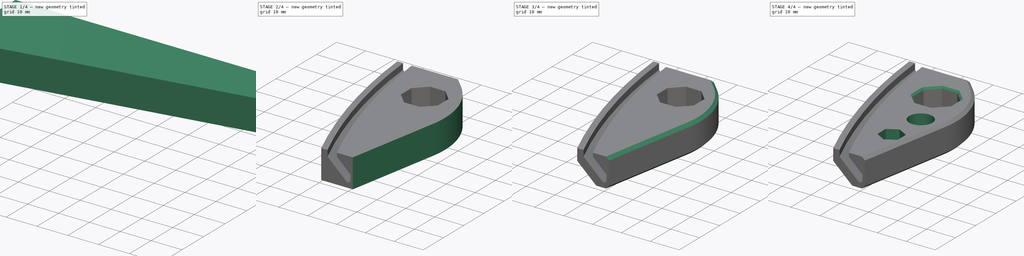
[diagram: build sequence overview — one tinted view per stage of 4, left to right]
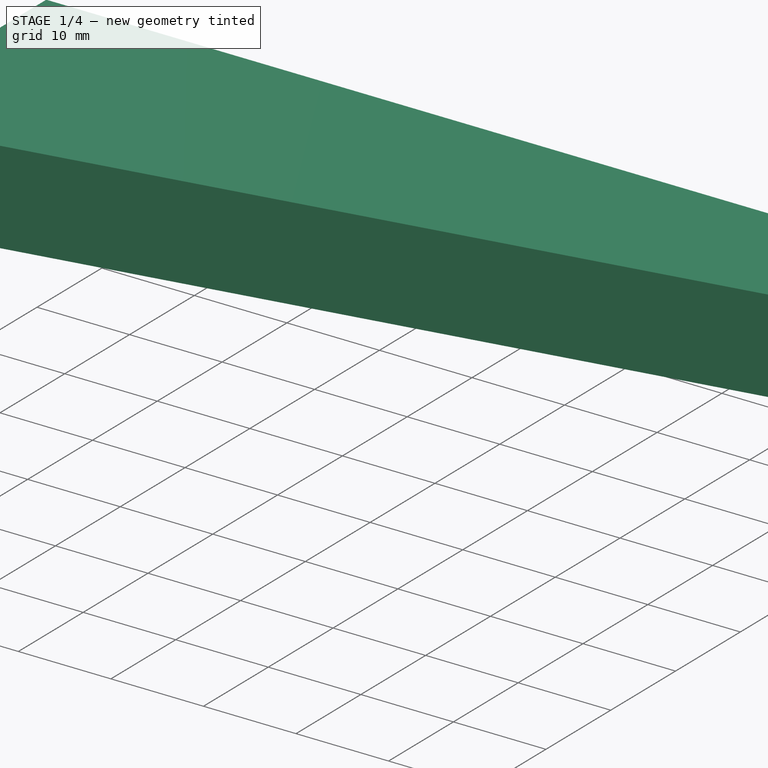
[diagram: stage 1 of 4 — iso view after this stage's code; geometry added in this stage tinted green]
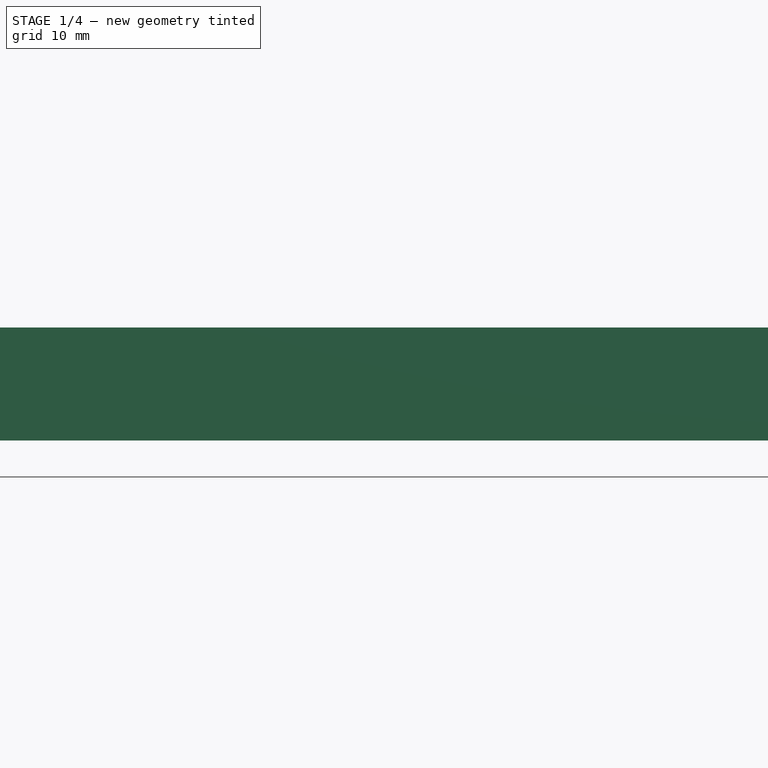
[diagram: stage 1 of 4 — front view after this stage's code; geometry added in this stage tinted green]
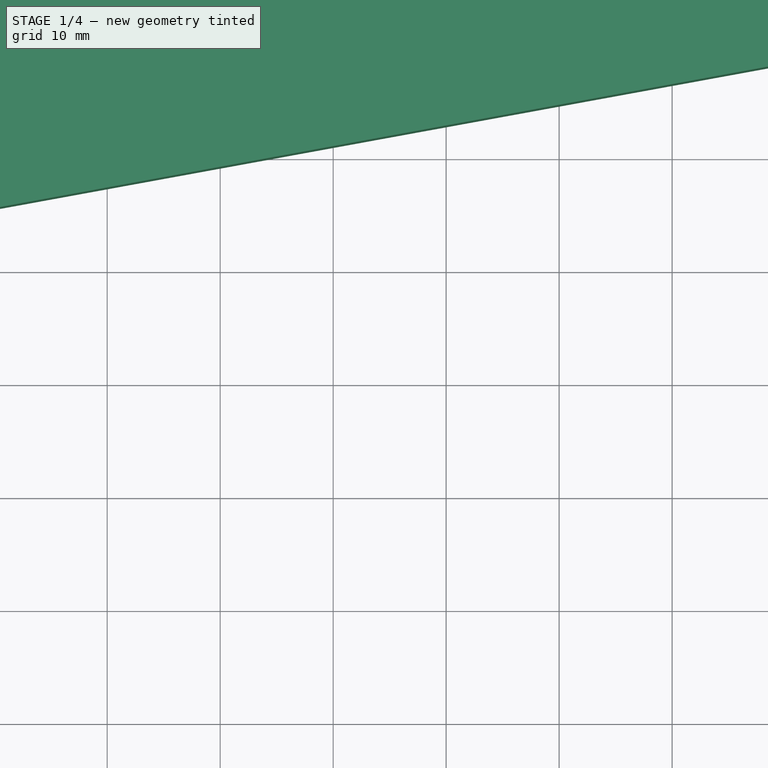
[diagram: stage 1 of 4 — top view after this stage's code; geometry added in this stage tinted green]
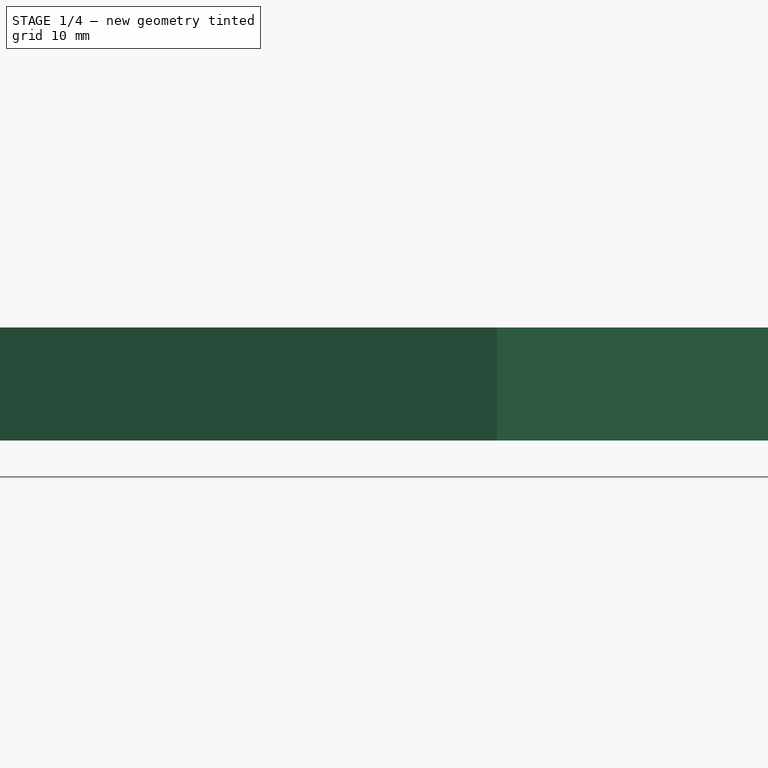
[diagram: stage 1 of 4 — right view after this stage's code; geometry added in this stage tinted green]
FCSTD DOCUMENT  (FreeCAD 0.17R12960 (Git))
Label: ma_Case1
License: All rights reserved
LicenseURL: http://en.wikipedia.org/wiki/All_rights_reserved
objects: Sketcher::SketchObject×4, PartDesign::Chamfer×4, PartDesign::Pocket×2, PartDesign::Pad×1, PartDesign::Groove×1, PartDesign::Fillet×1, PartDesign::Body×1
note: 18 computed .brp shape members not serialized (recipe doc carries the construction recipe); baked Part::Feature solids carry a one-line shape summary decoded from their .brp

FEATURE [Sketcher::SketchObject] Sketch
  MapMode = 5
  Support = -> [XY_Plane]
  sketch-geometry (16):
    g0: LineSegment StartX=-35 StartY=30 StartZ=0 EndX=0 EndY=30 EndZ=0
    g1: LineSegment StartX=0 StartY=20 StartZ=0 EndX=0 EndY=-30 EndZ=0
    g2: LineSegment StartX=0 StartY=-30 StartZ=0 EndX=-19.3055 EndY=-30 EndZ=0
    g3: ArcOfCircle CenterX=163.997 CenterY=50 CenterZ=0 NormalX=0 NormalY=0 NormalZ=1 AngleXU=0 Radius=200 StartAngle=3.24176 EndAngle=3.55311
    g4: LineSegment StartX=-8.6 StartY=12.349 StartZ=0 EndX=-8.6 EndY=17.651 EndZ=0
    g5: LineSegment StartX=-8.6 StartY=17.651 StartZ=0 EndX=-12.349 EndY=21.4 EndZ=0
    g6: LineSegment StartX=-12.349 StartY=21.4 StartZ=0 EndX=-17.651 EndY=21.4 EndZ=0
    g7: LineSegment StartX=-17.651 StartY=21.4 StartZ=0 EndX=-21.4 EndY=17.651 EndZ=0
    g8: LineSegment StartX=-21.4 StartY=17.651 StartZ=0 EndX=-21.4 EndY=12.349 EndZ=0
    g9: LineSegment StartX=-21.4 StartY=12.349 StartZ=0 EndX=-17.651 EndY=8.6 EndZ=0
    g10: LineSegment StartX=-17.651 StartY=8.6 StartZ=0 EndX=-12.349 EndY=8.6 EndZ=0
    g11: LineSegment StartX=-12.349 StartY=8.6 StartZ=0 EndX=-8.6 EndY=12.349 EndZ=0
    g12: Circle [constr] CenterX=-15 CenterY=15 CenterZ=0 NormalX=0 NormalY=0 NormalZ=1 AngleXU=0 Radius=6.92731
    g13: LineSegment StartX=0 StartY=50 StartZ=0 EndX=0 EndY=30 EndZ=0
    g14: LineSegment StartX=0 StartY=20 StartZ=0 EndX=163.997 EndY=50 EndZ=0
    g15: LineSegment StartX=163.997 StartY=50 StartZ=0 EndX=0 EndY=50 EndZ=0
  constraints (41):
    c: Coincident(g1,g2)
    c: Horizontal(g0)
    c: Horizontal(g2)
    c: PointOnObject(g1,g-2)
    c: Symmetric(g1,g0,g-1)
    c: DistanceY(g1,g0) = 60
    c: Coincident(g3,g0)
    c: DistanceY(g-1,g3) = 50
    c: DistanceX(g0,g0) = 35
    c: Radius(g3) = 200
    c: Coincident(g2,g3)
    c: Coincident(g4,g5)
    c: Coincident(g5,g6)
    c: Coincident(g6,g7)
    c: Coincident(g7,g8)
    c: Coincident(g8,g9)
    c: Coincident(g9,g10)
    c: Coincident(g10,g11)
    c: Coincident(g11,g4)
    c: Equal(g4, g5-g11) x7
    c: PointOnObject(g4,g12)
    c: PointOnObject(g5,g12)
    c: PointOnObject(g6,g12)
    c: PointOnObject(g7,g12)
    c: PointOnObject(g8,g12)
    c: PointOnObject(g9,g12)
    c: PointOnObject(g10,g12)
    c: PointOnObject(g11,g12)
    c: Horizontal(g10)
    c: DistanceY(g-1,g12) = 15
    c: DistanceX(g12,g-1) = 15
    c: DistanceX(g8,g4) = 12.8
    c: Coincident(g13,g0)
    c: Vertical(g13)
    c: DistanceY(g1,g0) = 10
    c: Vertical(g1)
    c: Coincident(g1,g14)
    c: Coincident(g14,g3)
    c: Coincident(g14,g15)
    c: Coincident(g15,g13)
    c: Horizontal(g15)
FEATURE [PartDesign::Pad] Pad
  Length = 10
  Length2 = 100
  Profile = -> Sketch
  Type = 0
FEATURE [Sketcher::SketchObject] Sketch001
  ExternalGeometry = -> [Pad]
  MapMode = 5
  Placement = pos=(0,30,0) rot=(0,0.707107,0.707107;3.14159rad)
  Support = -> [Pad]
  sketch-geometry (7):
    g0: LineSegment StartX=33 StartY=10 StartZ=0 EndX=33 EndY=7.9 EndZ=0
    g1: LineSegment StartX=33 StartY=7.9 StartZ=0 EndX=26.6 EndY=1.5 EndZ=0
    g2: LineSegment StartX=26.6 StartY=1.5 StartZ=0 EndX=25.7 EndY=2.4 EndZ=0
    g3: LineSegment StartX=25.7 StartY=2.4 StartZ=0 EndX=25.7 EndY=4.4 EndZ=0
    g4: LineSegment StartX=25.7 StartY=4.4 StartZ=0 EndX=30 EndY=8.7 EndZ=0
    g5: LineSegment StartX=30 StartY=8.7 StartZ=0 EndX=30 EndY=10 EndZ=0
    g6: LineSegment StartX=30 StartY=10 StartZ=0 EndX=33 EndY=10 EndZ=0
  constraints (21):
    c: PointOnObject(g0,g-3)
    c: Vertical(g0)
    c: Coincident(g0,g1)
    c: Coincident(g1,g2)
    c: Coincident(g2,g3)
    c: Vertical(g3)
    c: Coincident(g3,g4)
    c: Coincident(g4,g5)
    c: PointOnObject(g5,g-3)
    c: Vertical(g5)
    c: Coincident(g5,g6)
    c: Coincident(g6,g0)
    c: Parallel(g1,g4)
    c: Angle(g1) = -2.35619
    c: Angle(g2) = 2.35619
    c: DistanceY(g3,g3) = 2
    c: DistanceX(g0,g-3) = 2
    c: DistanceX(g6,g6) = 3
    c: DistanceY(g5,g5) = 1.3
    c: DistanceY(g1,g-3) = 8.5
    c: DistanceY(g0,g0) = 2.1
FEATURE [PartDesign::Groove] Groove
  Angle = 360
  Axis = (0,0,1)
  Base = (163.997,50,0)
  BaseFeature = -> Pad
  Profile = -> Sketch001
  ReferenceAxis = -> Pad [Edge17]
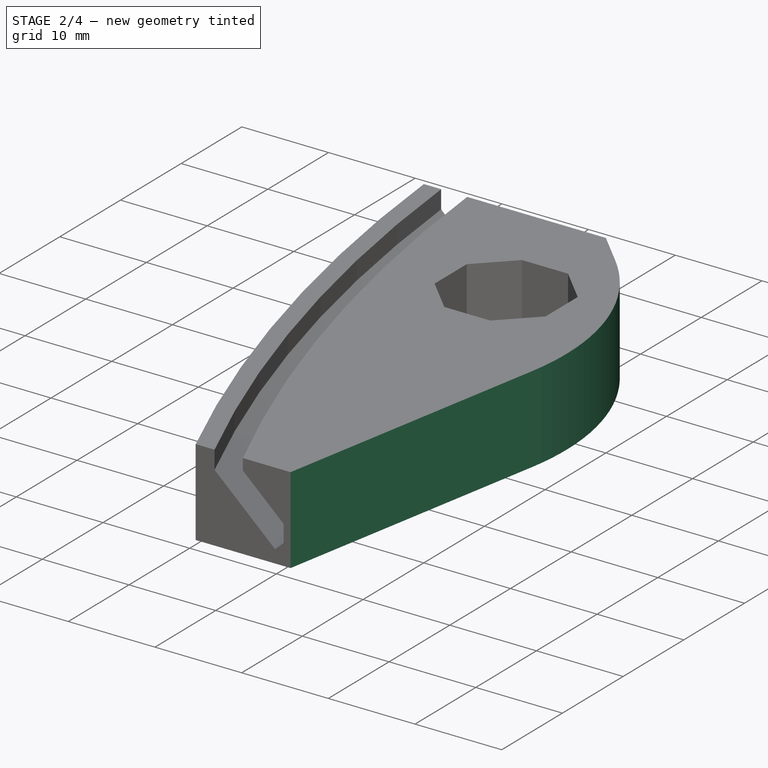
[diagram: stage 2 of 4 — iso view after this stage's code; geometry added in this stage tinted green]
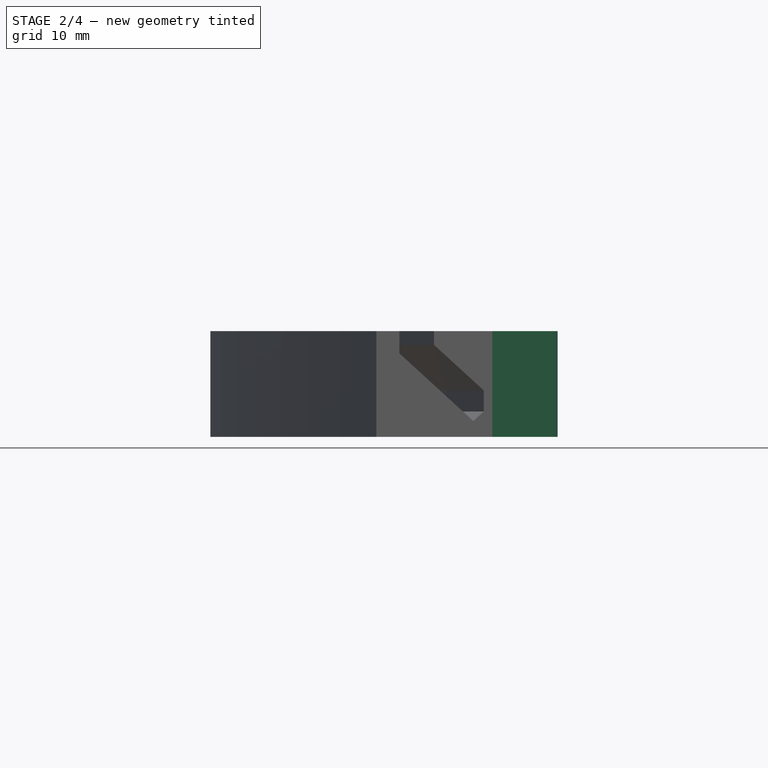
[diagram: stage 2 of 4 — front view after this stage's code; geometry added in this stage tinted green]
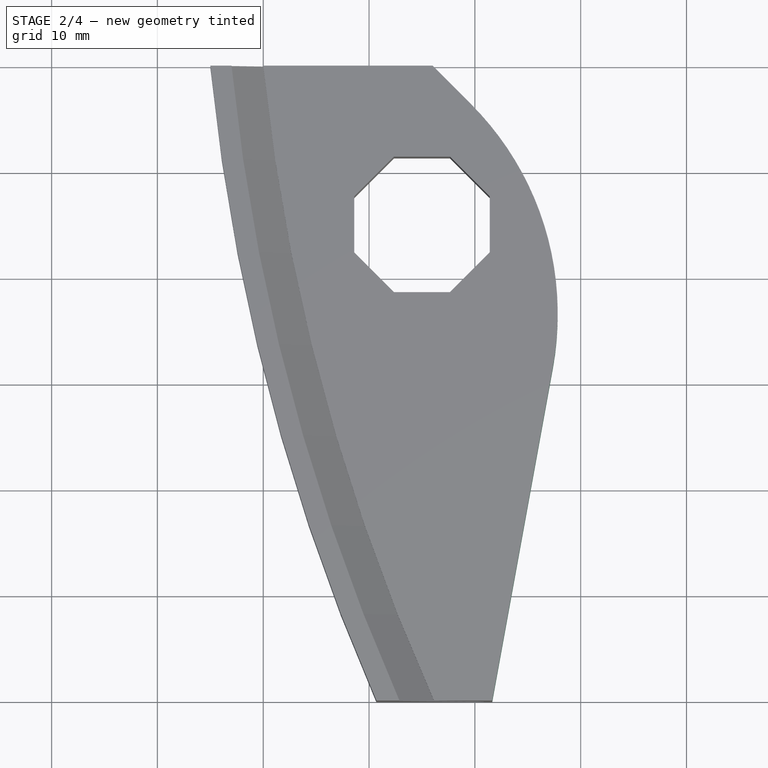
[diagram: stage 2 of 4 — top view after this stage's code; geometry added in this stage tinted green]
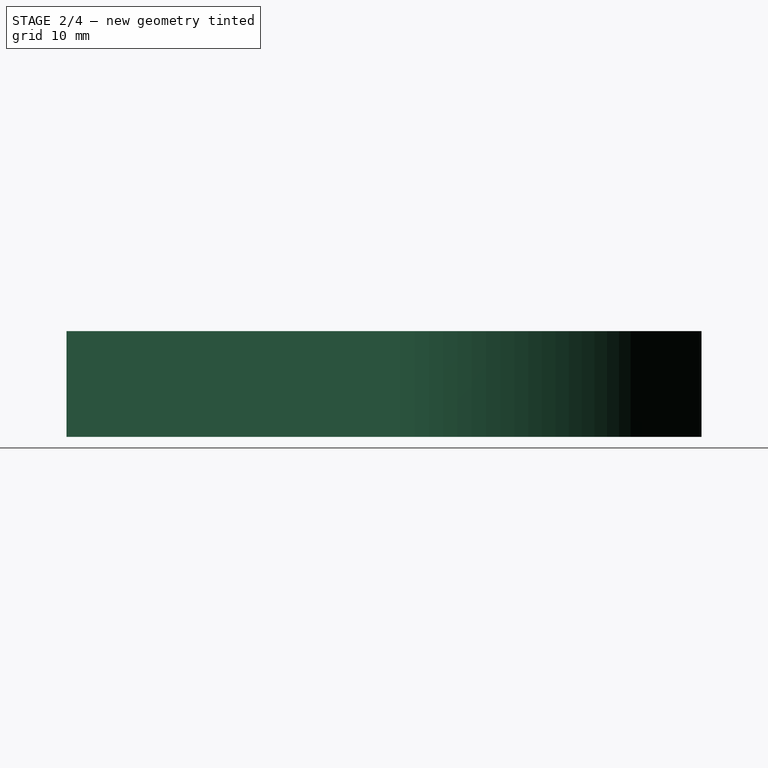
[diagram: stage 2 of 4 — right view after this stage's code; geometry added in this stage tinted green]
FEATURE [Sketcher::SketchObject] Sketch002
  MapMode = 5
  Placement = pos=(0,0,10) rot=(0,0,1;0rad)
  Support = -> [Groove]
  sketch-geometry (6):
    g0: LineSegment StartX=0 StartY=16 StartZ=0 EndX=-15 EndY=31 EndZ=0
    g1: LineSegment StartX=-15 StartY=31 StartZ=0 EndX=-15 EndY=51 EndZ=0
    g2: LineSegment StartX=-15 StartY=51 StartZ=0 EndX=170 EndY=51 EndZ=0
    g3: LineSegment StartX=170 StartY=51 StartZ=0 EndX=170 EndY=-39 EndZ=0
    g4: LineSegment StartX=170 StartY=-39 StartZ=0 EndX=-10 EndY=-39 EndZ=0
    g5: LineSegment StartX=-10 StartY=-39 StartZ=0 EndX=0 EndY=16 EndZ=0
  constraints (18):
    c: PointOnObject(g0,g-2)
    c: Coincident(g0,g1)
    c: Vertical(g1)
    c: Coincident(g1,g2)
    c: Horizontal(g2)
    c: Coincident(g2,g3)
    c: Vertical(g3)
    c: Coincident(g3,g4)
    c: Horizontal(g4)
    c: Coincident(g4,g5)
    c: Coincident(g5,g0)
    c: Angle(g0) = 2.35619
    c: DistanceY(g-1,g0) = 16
    c: DistanceX(g0,g-1) = 15
    c: DistanceY(g-1,g2) = 51
    c: DistanceY(g3,g3) = 90
    c: DistanceX(g4,g4) = 180
    c: DistanceX(g4,g-1) = 10
FEATURE [PartDesign::Pocket] Pocket
  BaseFeature = -> Groove
  Length = 5
  Profile = -> Sketch002
  Type = 1
FEATURE [PartDesign::Fillet] Fillet
  Base = -> Pocket [Edge4]
  BaseFeature = -> Pocket
  Radius = 28
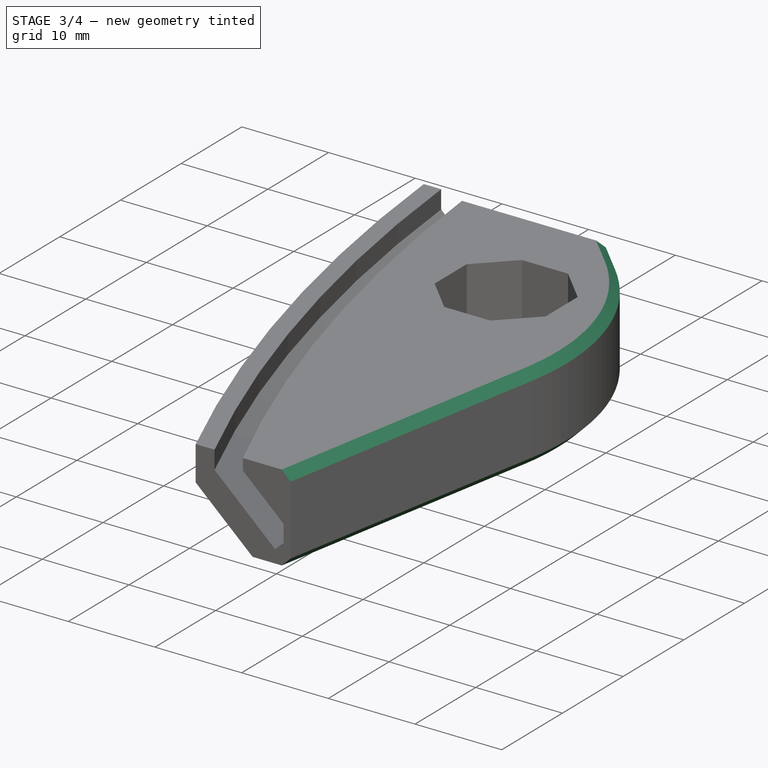
[diagram: stage 3 of 4 — iso view after this stage's code; geometry added in this stage tinted green]
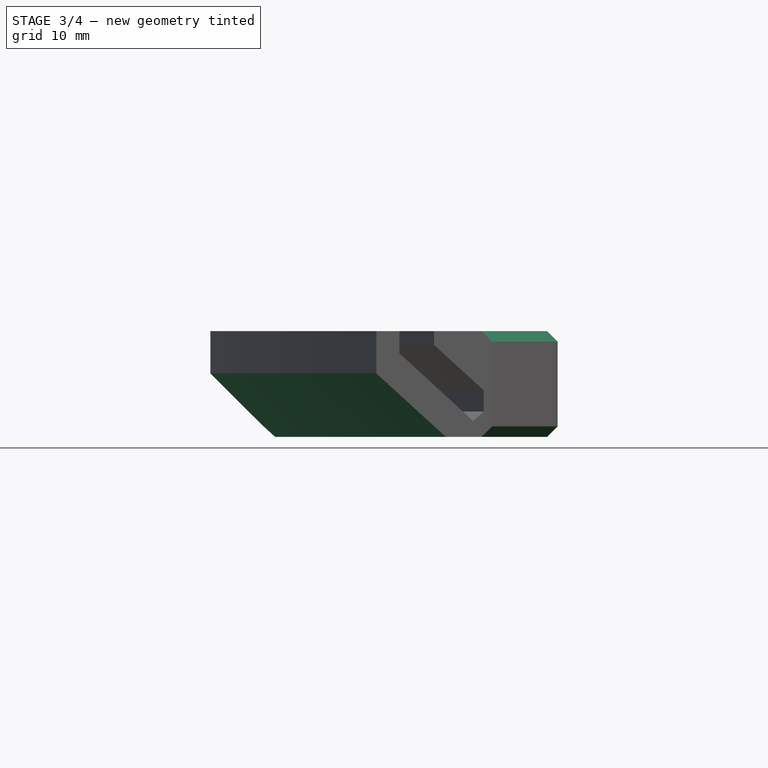
[diagram: stage 3 of 4 — front view after this stage's code; geometry added in this stage tinted green]
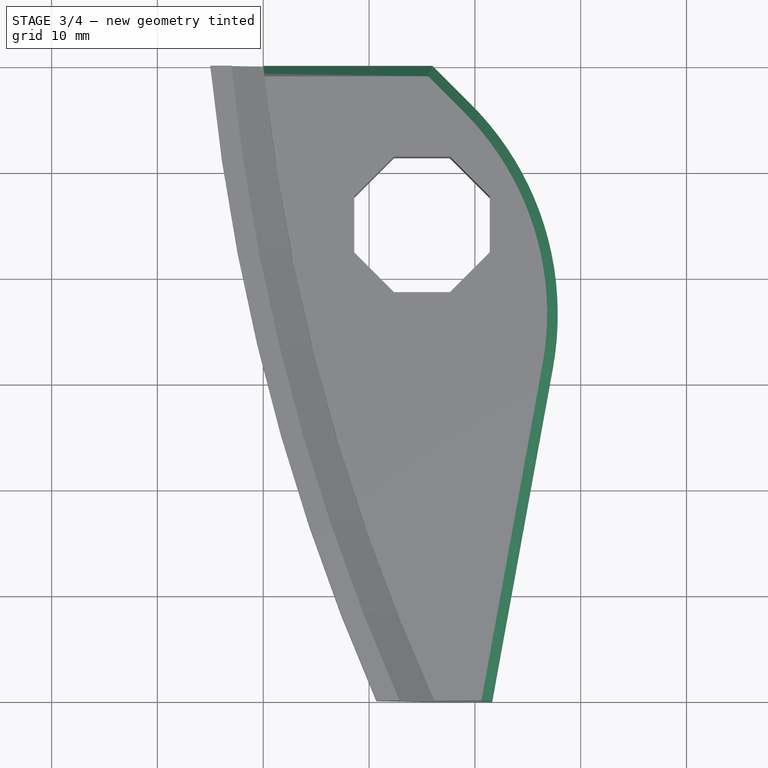
[diagram: stage 3 of 4 — top view after this stage's code; geometry added in this stage tinted green]
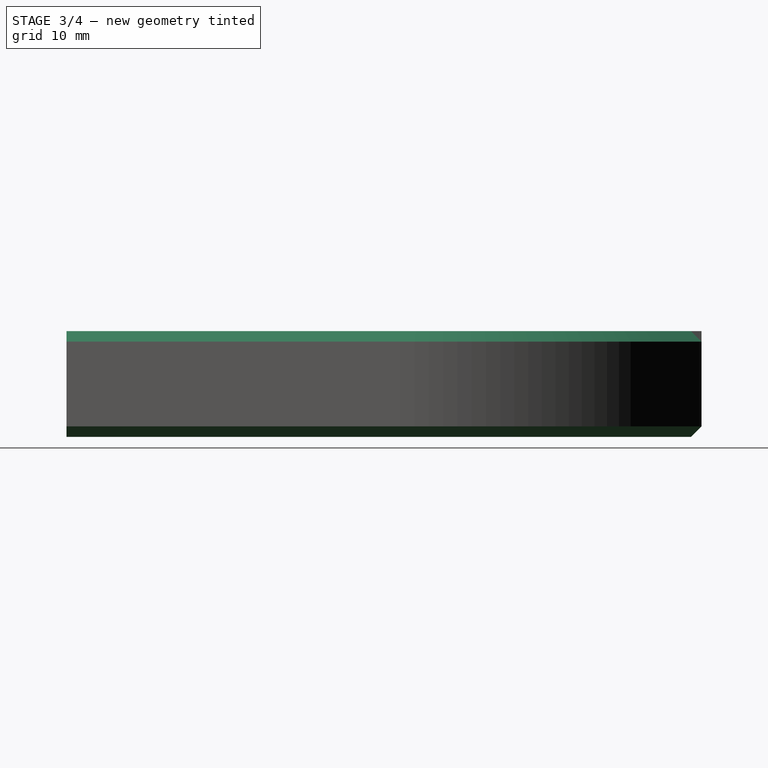
[diagram: stage 3 of 4 — right view after this stage's code; geometry added in this stage tinted green]
FEATURE [PartDesign::Chamfer] Chamfer
  Base = -> Fillet [Edge30]
  BaseFeature = -> Fillet
  Size = 6
FEATURE [PartDesign::Chamfer] Chamfer001
  Base = -> Chamfer [Edge32,Edge16,Edge1,Edge5]
  BaseFeature = -> Chamfer
  Size = 1
FEATURE [PartDesign::Chamfer] Chamfer002
  Base = -> Chamfer001 [Edge50,Edge51,Edge52,Edge45,Edge46,Edge47,Edge48,Edge49]
  BaseFeature = -> Chamfer001
  Size = 0.5
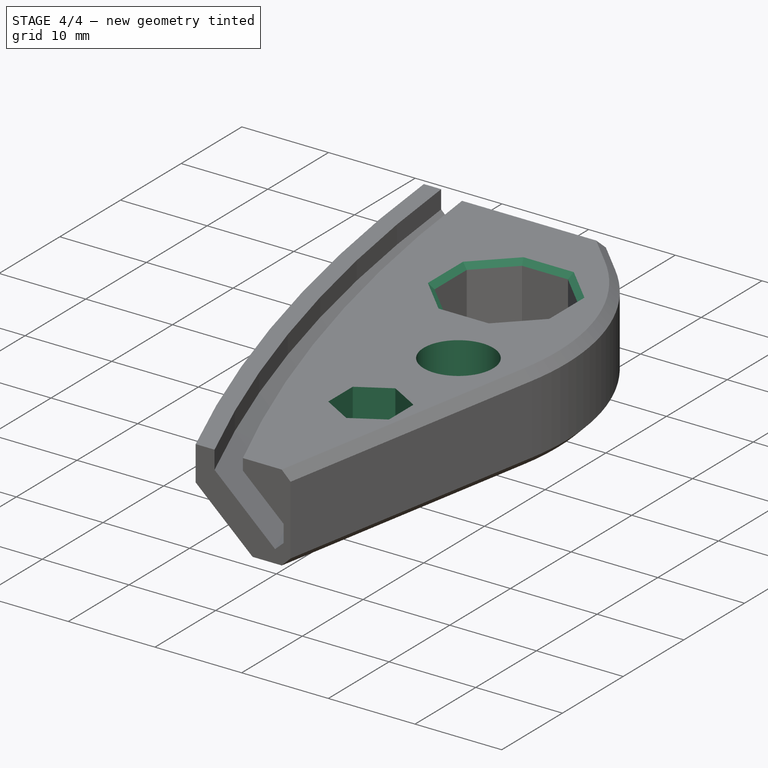
[diagram: stage 4 of 4 — iso view after this stage's code; geometry added in this stage tinted green]
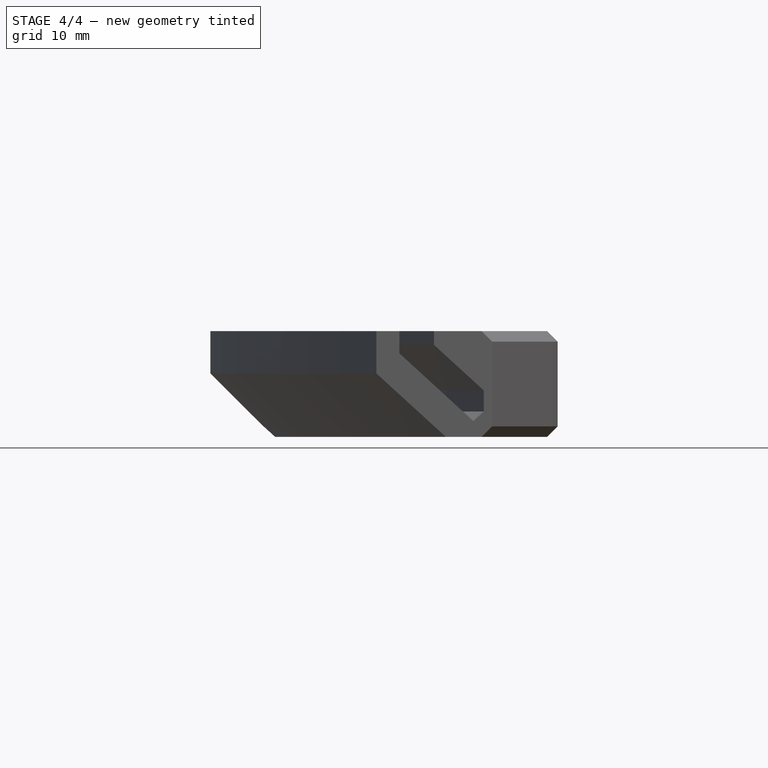
[diagram: stage 4 of 4 — front view after this stage's code; geometry added in this stage tinted green]
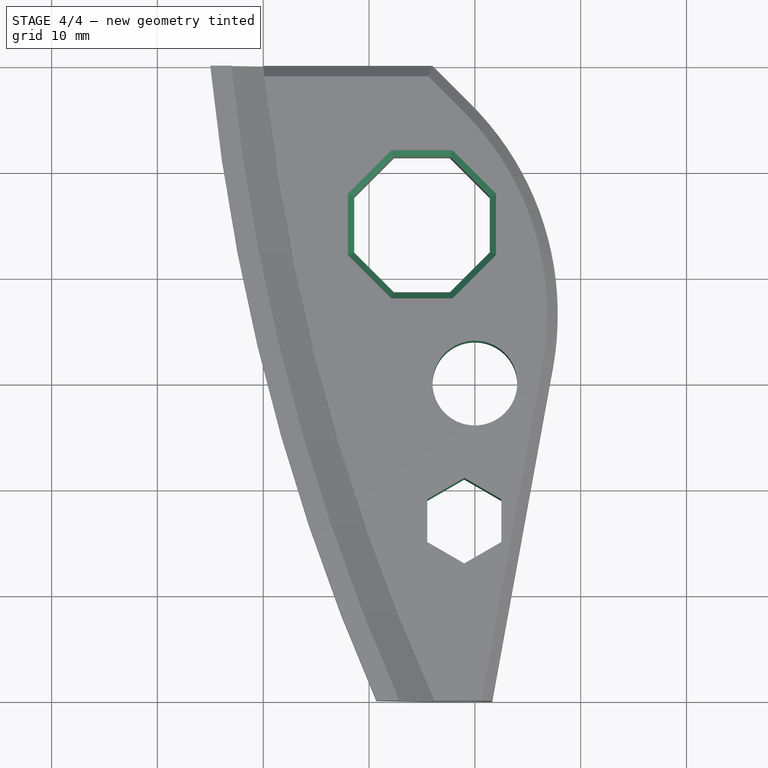
[diagram: stage 4 of 4 — top view after this stage's code; geometry added in this stage tinted green]
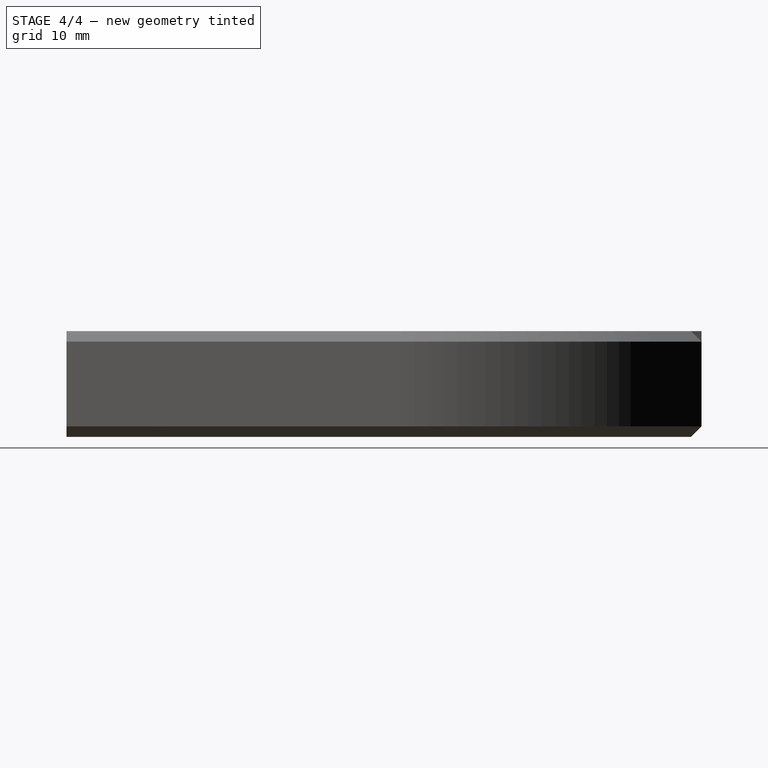
[diagram: stage 4 of 4 — right view after this stage's code; geometry added in this stage tinted green]
FEATURE [PartDesign::Chamfer] Chamfer003
  Base = -> Chamfer002 [Edge62,Edge58,Edge55,Edge59,Edge63,Edge67,Edge69,Edge66]
  BaseFeature = -> Chamfer002
  Size = 0.6
FEATURE [Sketcher::SketchObject] Sketch003
  MapMode = 5
  Placement = pos=(0,0,10) rot=(0,0,1;0rad)
  Support = -> [Chamfer003]
  sketch-geometry (8):
    g0: Circle CenterX=-10 CenterY=0 CenterZ=0 NormalX=0 NormalY=0 NormalZ=1 AngleXU=0 Radius=4
    g1: LineSegment StartX=-7.5 StartY=-15.0207 StartZ=0 EndX=-7.5 EndY=-10.9793 EndZ=0
    g2: LineSegment StartX=-7.5 StartY=-10.9793 StartZ=0 EndX=-11 EndY=-8.95855 EndZ=0
    g3: LineSegment StartX=-11 StartY=-8.95855 StartZ=0 EndX=-14.5 EndY=-10.9793 EndZ=0
    g4: LineSegment StartX=-14.5 StartY=-10.9793 StartZ=0 EndX=-14.5 EndY=-15.0207 EndZ=0
    g5: LineSegment StartX=-14.5 StartY=-15.0207 StartZ=0 EndX=-11 EndY=-17.0415 EndZ=0
    g6: LineSegment StartX=-11 StartY=-17.0415 StartZ=0 EndX=-7.5 EndY=-15.0207 EndZ=0
    g7: Circle [constr] CenterX=-11 CenterY=-13 CenterZ=0 NormalX=0 NormalY=0 NormalZ=1 AngleXU=0 Radius=4.04145
  constraints (20):
    c: PointOnObject(g0,g-1)
    c: Coincident(g1,g2)
    c: Coincident(g2,g3)
    c: Coincident(g3,g4)
    c: Coincident(g4,g5)
    c: Coincident(g5,g6)
    c: Coincident(g6,g1)
    c: Equal(g1, g2-g6) x5
    c: PointOnObject(g1,g7)
    c: PointOnObject(g2,g7)
    c: PointOnObject(g3,g7)
    c: PointOnObject(g4,g7)
    c: PointOnObject(g5,g7)
    c: PointOnObject(g6,g7)
    c: Vertical(g1)
    c: DistanceX(g4,g1) = 7
    c: Radius(g0) = 4
    c: DistanceX(g0,g-1) = 10
    c: DistanceX(g7,g-1) = 11
    c: DistanceY(g7,g-1) = 13
FEATURE [PartDesign::Pocket] Pocket001
  BaseFeature = -> Chamfer003
  Length = 5
  Profile = -> Sketch003
  Type = 1
FEATURE [PartDesign::Body] Body
  Group = -> [Sketch,Pad,Sketch001,Groove,Sketch002,Pocket,Fillet,Chamfer,Chamfer001,Chamfer002,Chamfer003,Sketch003,Pocket001]
  Origin = -> Origin
  Tip = -> Pocket001
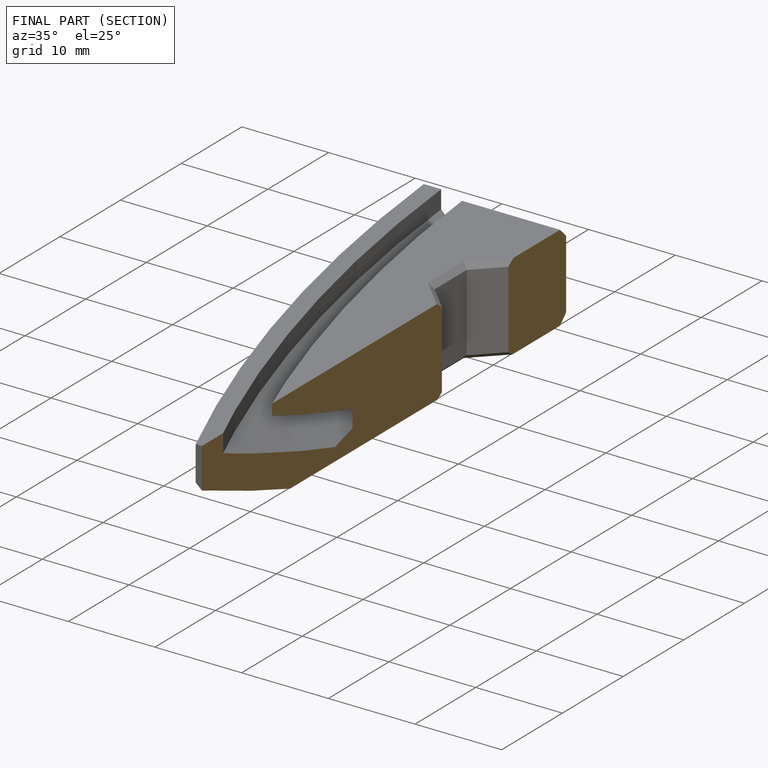
[diagram: finished part — half-section view (interior)]
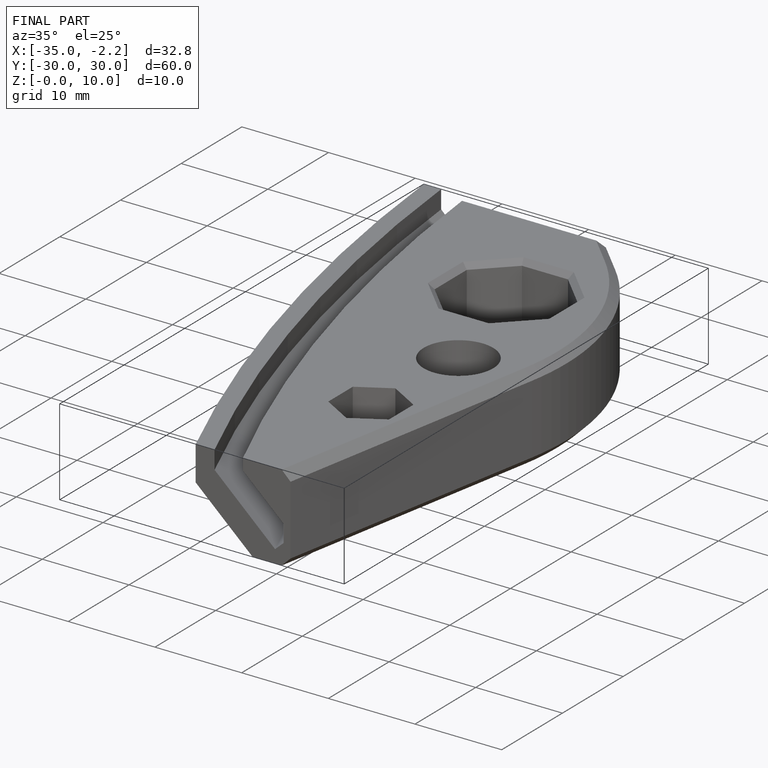
[diagram: finished part — iso view with bounding-box wireframe]
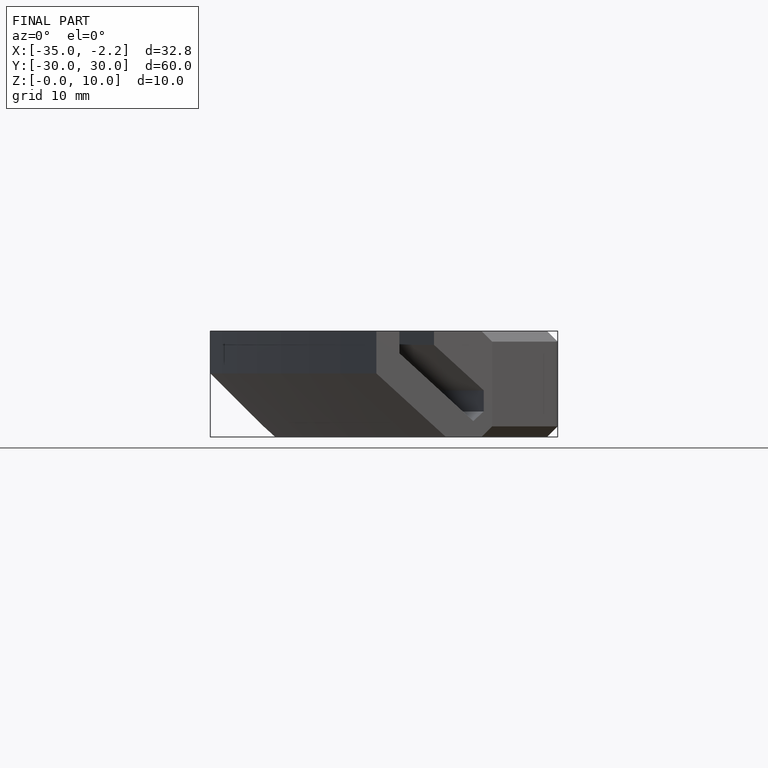
[diagram: finished part — front view with bounding-box wireframe]
